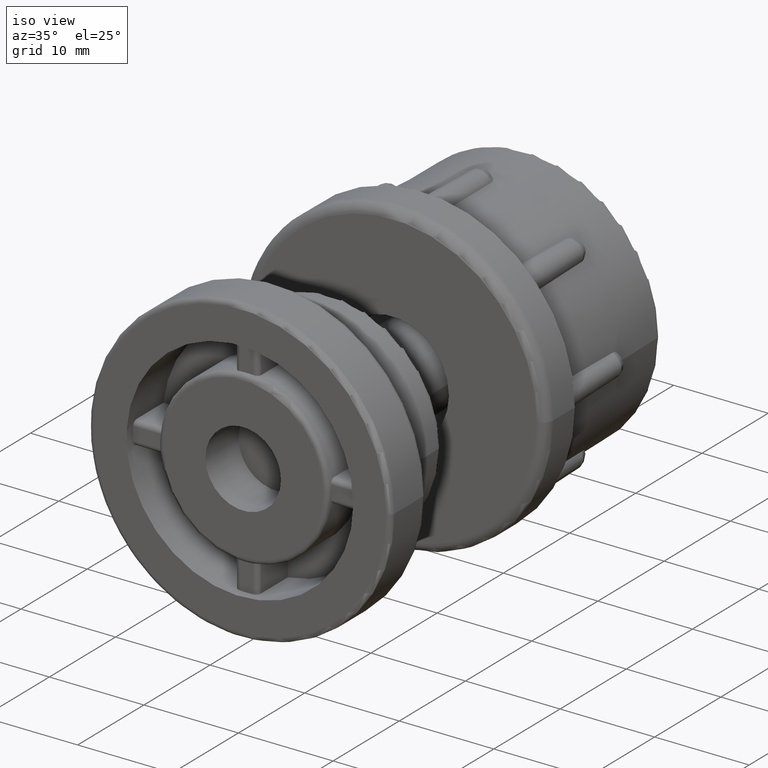
[diagram: clean part render]
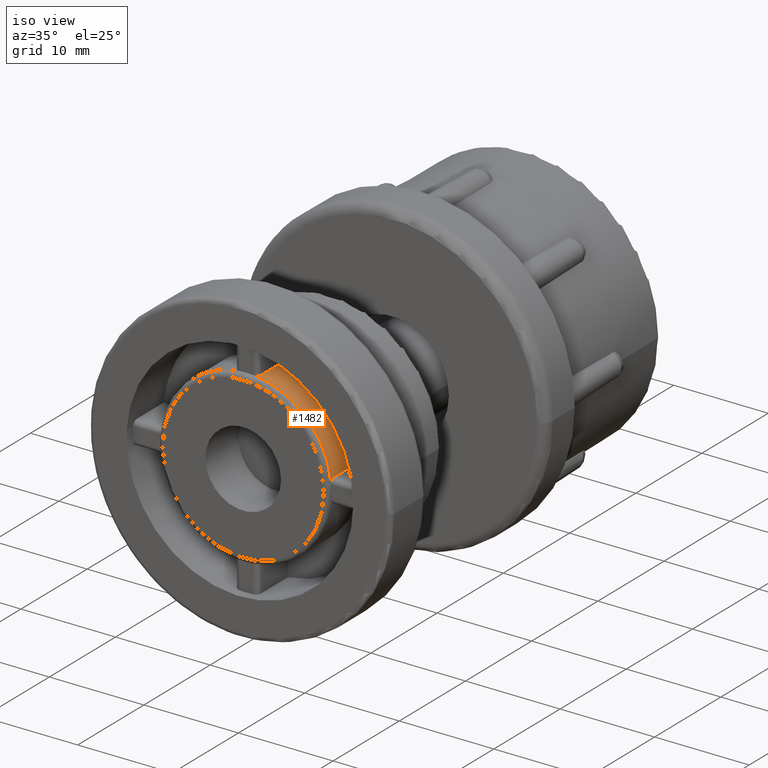
[diagram: same view with one face highlighted and labeled with its STEP entity id]
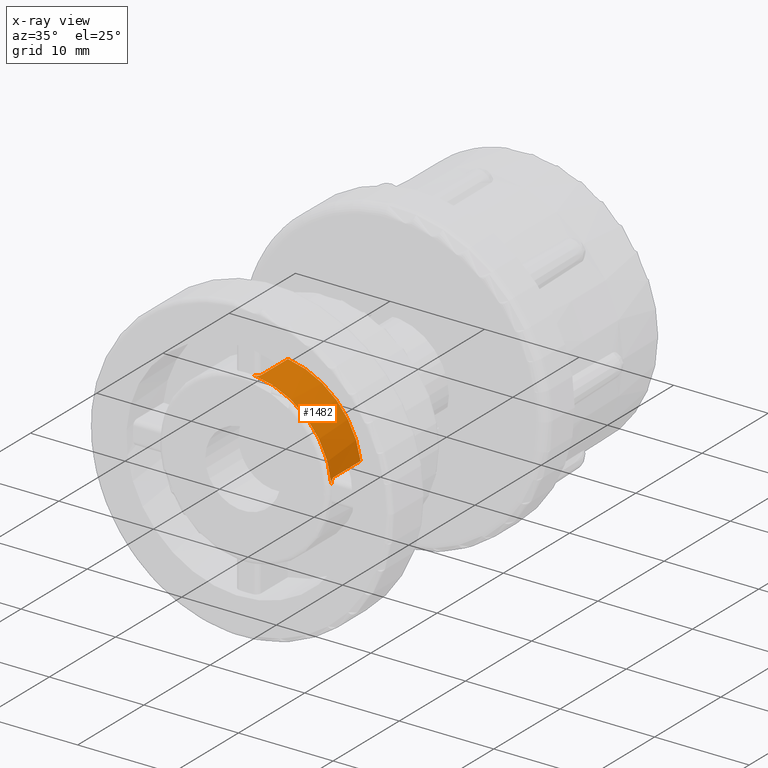
[diagram: x-ray of the same camera — body ghosted, the highlighted face saturated]
A machine part, iso view. The second image highlights one B-rep face of the part: STEP entity #1482.
The next image is the same camera in x-ray: the body ghosted, the highlighted face saturated — about 0% of this face is hidden behind the body in this view.
In plain terms, the highlighted cylindrical surface (partial cylindrical patch) has radius 9 mm, axis along (0, 1, 0).
Its self-contained STEP definition (entity closure, byte-faithful):
#78=CIRCLE('',#1580,9.);
#85=CIRCLE('',#1588,9.);
#233=FACE_OUTER_BOUND('',#327,.T.);
#327=EDGE_LOOP('',(#1080,#1081,#1082,#1083,#1084,#1085));
#462=LINE('',#2367,#534);
#465=LINE('',#2397,#537);
#534=VECTOR('',#1794,4.);
#537=VECTOR('',#1801,4.);
#587=B_SPLINE_CURVE_WITH_KNOTS('',3,(#2338,#2339,#2340,#2341,#2342,#2343,
#2344,#2345,#2346,#2347),.UNSPECIFIED.,.F.,.F.,(4,2,2,2,4),(0.226359242321466,
0.245295656617784,0.264232070914102,0.283070817880796,0.301909564847491),
 .UNSPECIFIED.);
#589=B_SPLINE_CURVE_WITH_KNOTS('',3,(#2371,#2372,#2373,#2374,#2375,#2376,
#2377,#2378,#2379,#2380),.UNSPECIFIED.,.F.,.F.,(4,2,2,2,4),(0.,0.0188387469666945,
0.037677493933389,0.0566139082297067,0.0755503225260245),.UNSPECIFIED.);
#663=VERTEX_POINT('',#2336);
#664=VERTEX_POINT('',#2337);
#668=VERTEX_POINT('',#2365);
#669=VERTEX_POINT('',#2369);
#670=VERTEX_POINT('',#2370);
#673=VERTEX_POINT('',#2396);
#825=EDGE_CURVE('',#663,#664,#587,.F.);
#831=EDGE_CURVE('',#663,#668,#462,.T.);
#832=EDGE_CURVE('',#669,#670,#589,.T.);
#836=EDGE_CURVE('',#673,#669,#465,.T.);
#848=EDGE_CURVE('',#664,#670,#78,.T.);
#855=EDGE_CURVE('',#668,#673,#85,.T.);
#1080=ORIENTED_EDGE('',*,*,#848,.F.);
#1081=ORIENTED_EDGE('',*,*,#825,.F.);
#1082=ORIENTED_EDGE('',*,*,#831,.T.);
#1083=ORIENTED_EDGE('',*,*,#855,.T.);
#1084=ORIENTED_EDGE('',*,*,#836,.T.);
#1085=ORIENTED_EDGE('',*,*,#832,.T.);
#1449=CYLINDRICAL_SURFACE('',#1587,9.);
#1482=ADVANCED_FACE('',(#233),#1449,.T.);
#1580=AXIS2_PLACEMENT_3D('',#2437,#1819,#1820);
#1587=AXIS2_PLACEMENT_3D('',#2445,#1833,#1834);
#1588=AXIS2_PLACEMENT_3D('',#2446,#1835,#1836);
#1794=DIRECTION('',(0.,1.,0.));
#1801=DIRECTION('',(0.,-1.,0.));
#1819=DIRECTION('center_axis',(0.,-1.,0.));
#1820=DIRECTION('ref_axis',(-1.,0.,0.));
#1833=DIRECTION('center_axis',(0.,1.,0.));
#1834=DIRECTION('ref_axis',(-1.,0.,0.));
#1835=DIRECTION('center_axis',(6.34413156928661E-17,-1.,0.));
#1836=DIRECTION('ref_axis',(-1.,0.,0.));
#2336=CARTESIAN_POINT('',(8.91624220173499,1.5,1.225));
#2337=CARTESIAN_POINT('',(8.97075108338204,1.,0.725));
#2338=CARTESIAN_POINT('Ctrl Pts',(8.97075108338204,1.,0.725));
#2339=CARTESIAN_POINT('Ctrl Pts',(8.96566630546914,1.,0.787916244097801));
#2340=CARTESIAN_POINT('Ctrl Pts',(8.95951311142866,1.0125948404136,0.854964969518351));
#2341=CARTESIAN_POINT('Ctrl Pts',(8.9468903143191,1.06375041541312,0.978260699723943));
#2342=CARTESIAN_POINT('Ctrl Pts',(8.9404578621422,1.10230949654349,1.03451219112729));
#2343=CARTESIAN_POINT('Ctrl Pts',(8.92975692421021,1.19112032634881,1.12313086157963));
#2344=CARTESIAN_POINT('Ctrl Pts',(8.92477207676993,1.24722912768921,1.16150914347135));
#2345=CARTESIAN_POINT('Ctrl Pts',(8.91799504796832,1.37026917173728,1.21244564387399));
#2346=CARTESIAN_POINT('Ctrl Pts',(8.91624220173499,1.43720417677769,1.225));
#2347=CARTESIAN_POINT('Ctrl Pts',(8.91624220173499,1.5,1.225));
#2365=CARTESIAN_POINT('',(8.91624220173499,5.5,1.225));
#2367=CARTESIAN_POINT('',(8.91624220173499,0.,1.225));
#2369=CARTESIAN_POINT('',(1.225,1.5,8.91624220173499));
#2370=CARTESIAN_POINT('',(0.724999999999998,1.,8.97075108338204));
#2371=CARTESIAN_POINT('Ctrl Pts',(1.225,1.5,8.91624220173499));
#2372=CARTESIAN_POINT('Ctrl Pts',(1.225,1.43720417677769,8.91624220173499));
#2373=CARTESIAN_POINT('Ctrl Pts',(1.21244564387399,1.37026917173728,8.91799504796832));
#2374=CARTESIAN_POINT('Ctrl Pts',(1.16150914347134,1.24722912768921,8.92477207676993));
#2375=CARTESIAN_POINT('Ctrl Pts',(1.12313086157963,1.19112032634881,8.92975692421021));
#2376=CARTESIAN_POINT('Ctrl Pts',(1.03451219112729,1.10230949654349,8.9404578621422));
#2377=CARTESIAN_POINT('Ctrl Pts',(0.978260699723942,1.06375041541312,8.9468903143191));
#2378=CARTESIAN_POINT('Ctrl Pts',(0.85496496951835,1.0125948404136,8.95951311142866));
#2379=CARTESIAN_POINT('Ctrl Pts',(0.787916244097799,1.,8.96566630546914));
#2380=CARTESIAN_POINT('Ctrl Pts',(0.724999999999998,1.,8.97075108338204));
#2396=CARTESIAN_POINT('',(1.225,5.5,8.91624220173499));
#2397=CARTESIAN_POINT('',(1.225,0.,8.91624220173499));
#2437=CARTESIAN_POINT('Origin',(0.,1.,0.));
#2445=CARTESIAN_POINT('Origin',(0.,0.,0.));
#2446=CARTESIAN_POINT('Origin',(0.,5.5,0.));